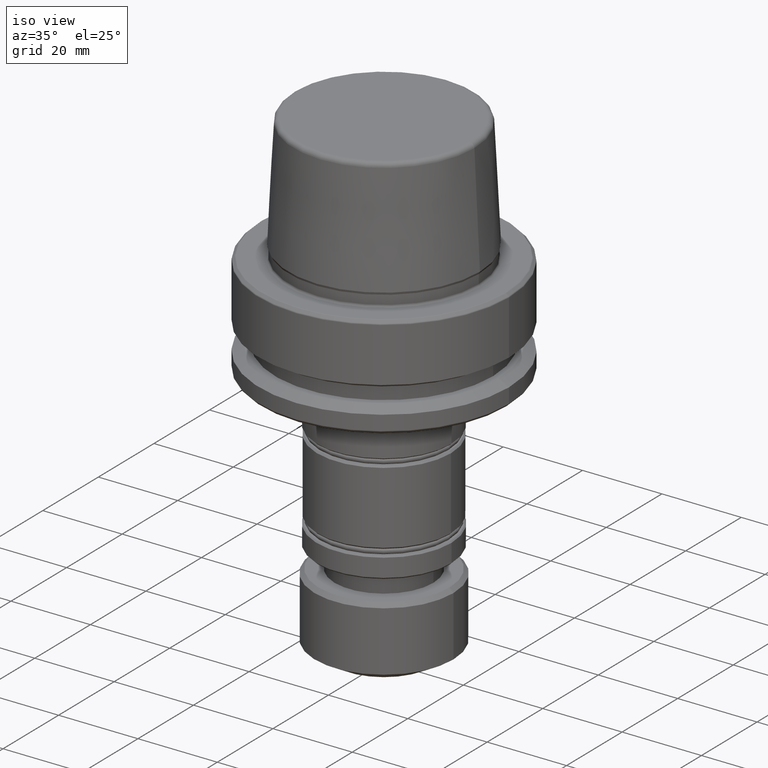
[diagram: clean part render]
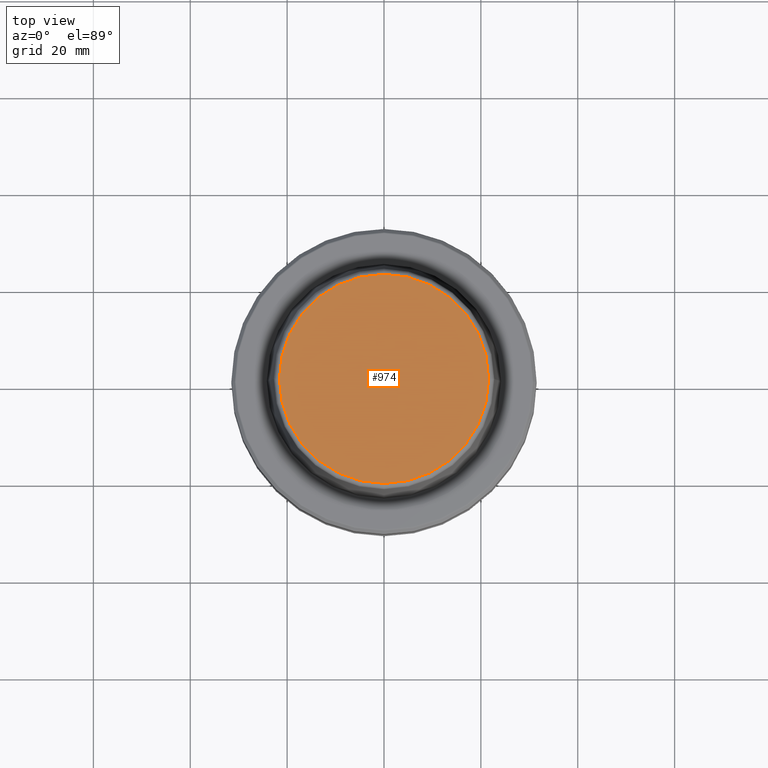
[diagram: tour spotlight — one face highlighted and labeled with its STEP entity id]
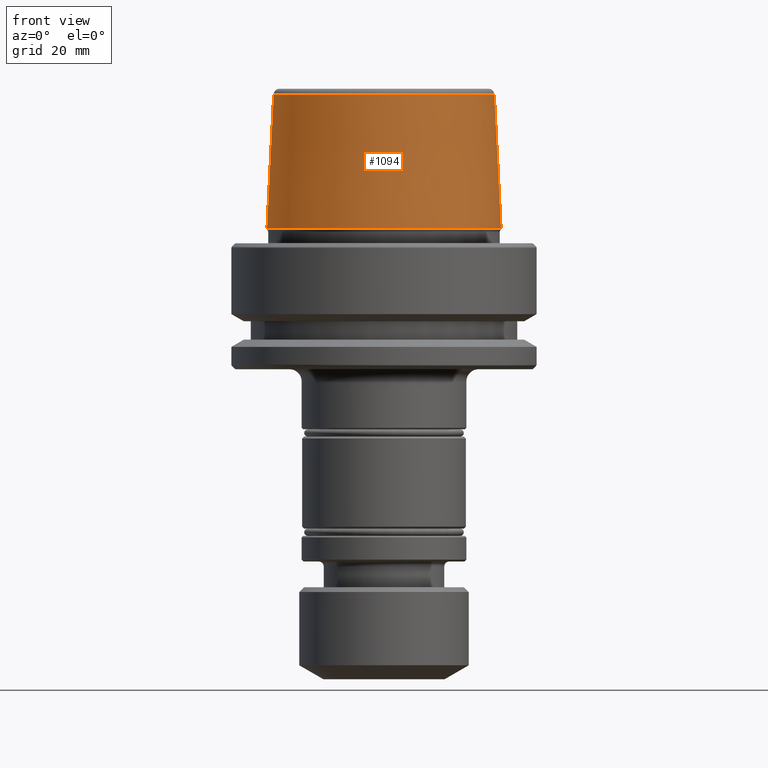
[diagram: tour spotlight — one face highlighted and labeled with its STEP entity id]
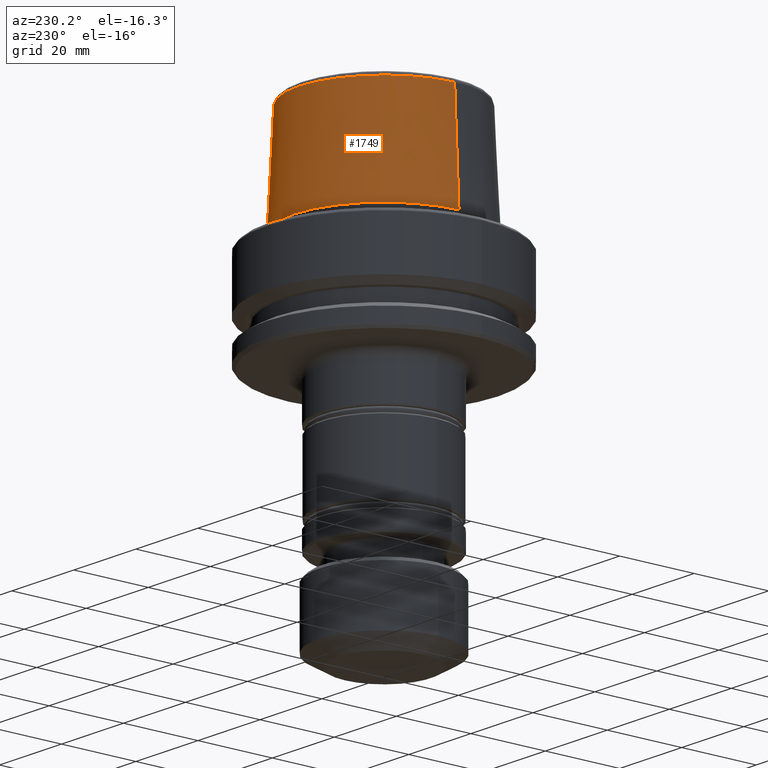
[diagram: tour spotlight — one face highlighted and labeled with its STEP entity id]
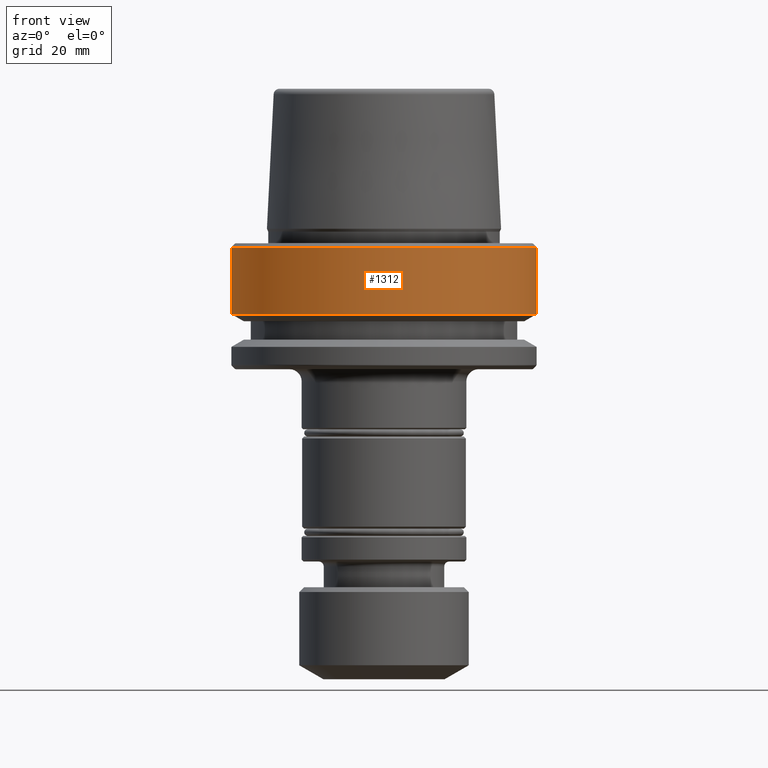
[diagram: tour spotlight — one face highlighted and labeled with its STEP entity id]
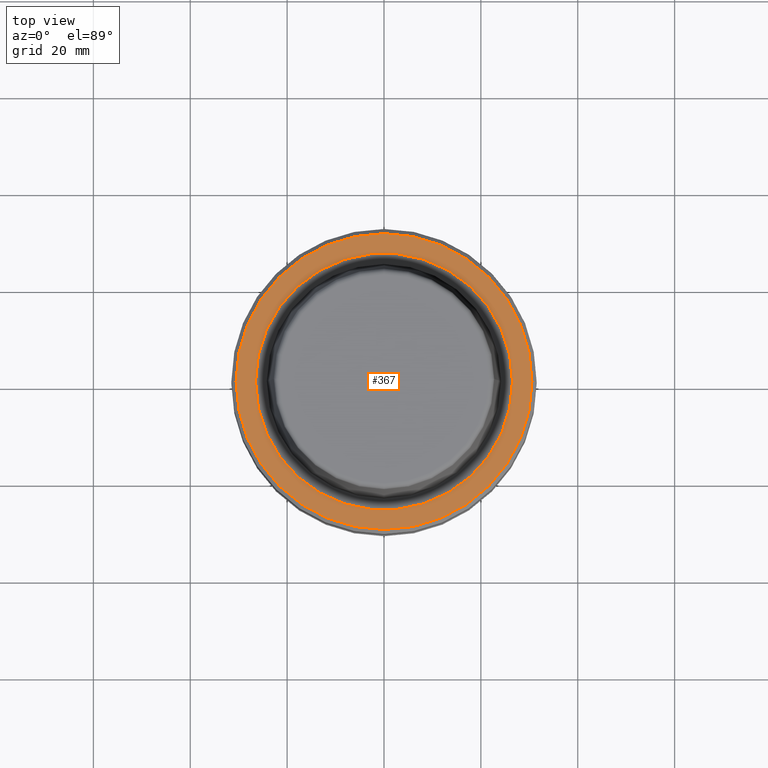
[diagram: tour spotlight — one face highlighted and labeled with its STEP entity id]
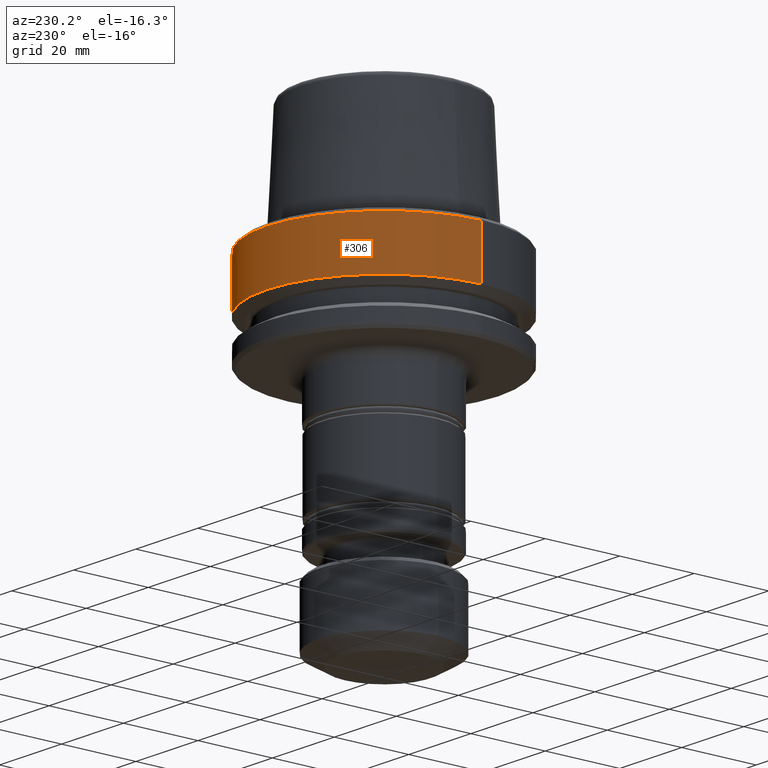
[diagram: tour spotlight — one face highlighted and labeled with its STEP entity id]
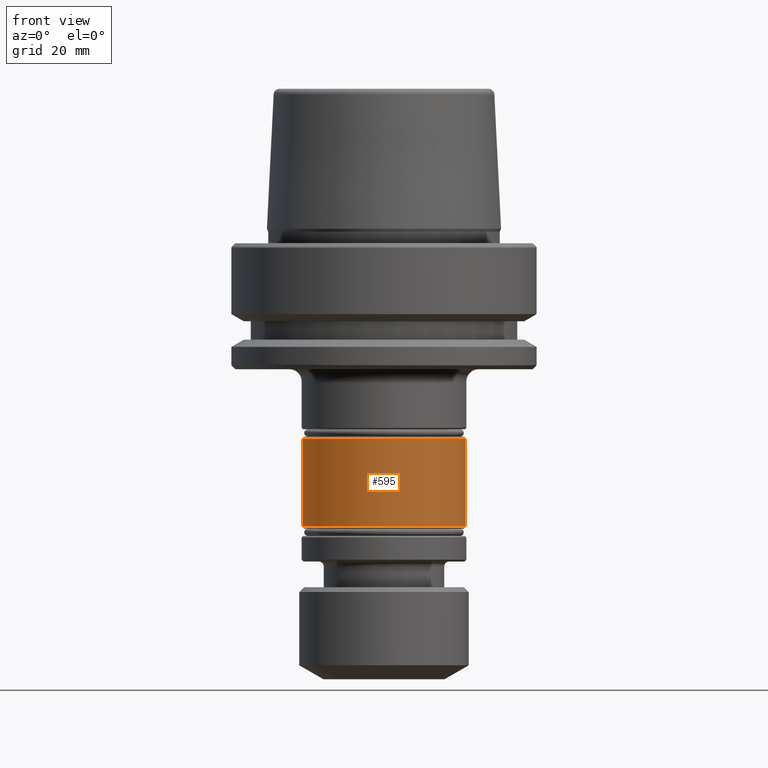
[diagram: tour spotlight — one face highlighted and labeled with its STEP entity id]
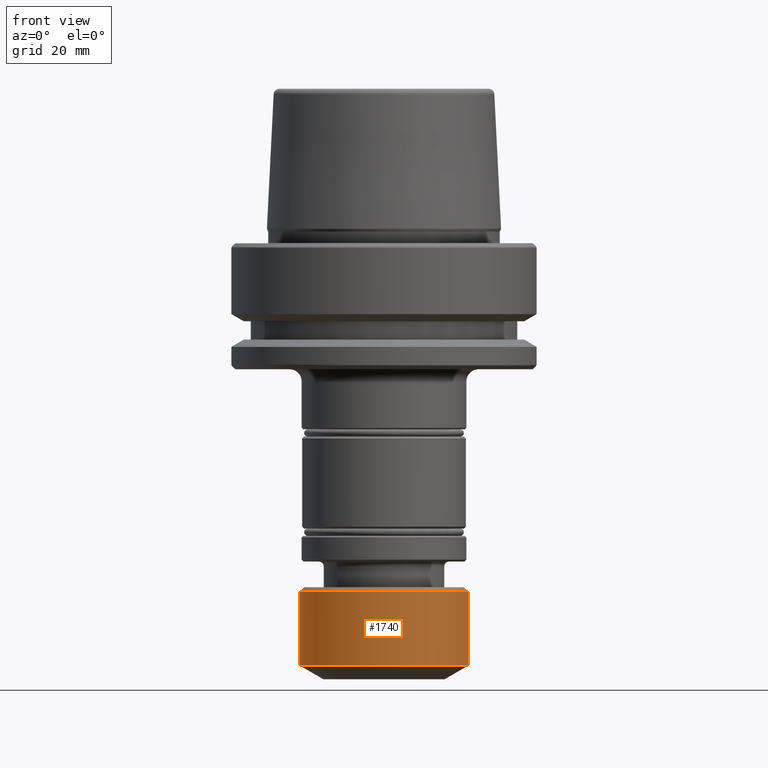
[diagram: tour spotlight — one face highlighted and labeled with its STEP entity id]
A machine part: a face-by-face anatomy tour. The part has 78 B-rep faces; the first image is the clean iso view, then the 8 largest visible faces are spotlighted one at a time (largest first), each with its STEP entity span.

Face 1 — top view, entity #974. In plain terms, the highlighted planar face has unit normal (0, 0, -1).
Definition (entity closure, byte-faithful):
#7 = CIRCLE ( 'NONE', #1008, 21.58108272732117100 ) ;
#30 = CIRCLE ( 'NONE', #1220, 21.58108272732117100 ) ;
#42 = EDGE_LOOP ( 'NONE', ( #1570, #1662 ) ) ;
#95 = EDGE_CURVE ( 'NONE', #1498, #1364, #7, .T. ) ;
#199 = CARTESIAN_POINT ( 'NONE',  ( 0.0000000000000000000, 0.0000000000000000000, 31.89999999999999900 ) ) ;
#364 = DIRECTION ( 'NONE',  ( -0.0000000000000000000, -0.0000000000000000000, 1.000000000000000000 ) ) ;
#430 = PLANE ( 'NONE',  #599 ) ;
#491 = DIRECTION ( 'NONE',  ( 0.0000000000000000000, 0.0000000000000000000, -1.000000000000000000 ) ) ;
#498 = CARTESIAN_POINT ( 'NONE',  ( -21.58108272732117100, 2.716307157494421400E-015, 31.89999999999999900 ) ) ;
#531 = DIRECTION ( 'NONE',  ( 1.000000000000000000, 0.0000000000000000000, 0.0000000000000000000 ) ) ;
#599 = AXIS2_PLACEMENT_3D ( 'NONE', #2032, #491, #1806 ) ;
#722 = EDGE_CURVE ( 'NONE', #1364, #1498, #30, .T. ) ;
#916 = DIRECTION ( 'NONE',  ( -0.0000000000000000000, -0.0000000000000000000, 1.000000000000000000 ) ) ;
#974 = ADVANCED_FACE ( 'NONE', ( #1673 ), #430, .F. ) ;
#1008 = AXIS2_PLACEMENT_3D ( 'NONE', #199, #916, #1482 ) ;
#1220 = AXIS2_PLACEMENT_3D ( 'NONE', #2004, #364, #531 ) ;
#1250 = CARTESIAN_POINT ( 'NONE',  ( 21.58108272732117100, 0.0000000000000000000, 31.89999999999999900 ) ) ;
#1364 = VERTEX_POINT ( 'NONE', #498 ) ;
#1482 = DIRECTION ( 'NONE',  ( 1.000000000000000000, 0.0000000000000000000, 0.0000000000000000000 ) ) ;
#1498 = VERTEX_POINT ( 'NONE', #1250 ) ;
#1570 = ORIENTED_EDGE ( 'NONE', *, *, #95, .T. ) ;
#1662 = ORIENTED_EDGE ( 'NONE', *, *, #722, .T. ) ;
#1673 = FACE_OUTER_BOUND ( 'NONE', #42, .T. ) ;
#1806 = DIRECTION ( 'NONE',  ( -1.000000000000000000, 0.0000000000000000000, -0.0000000000000000000 ) ) ;
#2004 = CARTESIAN_POINT ( 'NONE',  ( 0.0000000000000000000, 0.0000000000000000000, 31.89999999999999900 ) ) ;
#2032 = CARTESIAN_POINT ( 'NONE',  ( 0.0000000000000000000, 0.0000000000000000000, 31.89999999999999900 ) ) ;

Face 2 — front view, entity #1094. In plain terms, the highlighted conical surface has half-angle 2.868 deg.
Definition (entity closure, byte-faithful):
#6 = AXIS2_PLACEMENT_3D ( 'NONE', #1765, #400, #1548 ) ;
#56 = CARTESIAN_POINT ( 'NONE',  ( -22.77957961851797100, 0.0000000000000000000, 30.76004333261571900 ) ) ;
#93 = VECTOR ( 'NONE', #1204, 1000.000000000000200 ) ;
#118 = LINE ( 'NONE', #1363, #93 ) ;
#177 = EDGE_CURVE ( 'NONE', #576, #1287, #118, .T. ) ;
#208 = CIRCLE ( 'NONE', #1001, 22.77957961851797100 ) ;
#276 = VERTEX_POINT ( 'NONE', #1198 ) ;
#338 = LINE ( 'NONE', #1951, #1532 ) ;
#380 = DIRECTION ( 'NONE',  ( -0.0000000000000000000, -0.0000000000000000000, 1.000000000000000000 ) ) ;
#388 = FACE_OUTER_BOUND ( 'NONE', #1419, .T. ) ;
#400 = DIRECTION ( 'NONE',  ( -0.0000000000000000000, -0.0000000000000000000, 1.000000000000000000 ) ) ;
#576 = VERTEX_POINT ( 'NONE', #56 ) ;
#697 = EDGE_CURVE ( 'NONE', #576, #1804, #208, .T. ) ;
#783 = EDGE_CURVE ( 'NONE', #1287, #276, #973, .T. ) ;
#795 = DIRECTION ( 'NONE',  ( 0.05003611051310812000, 6.127656258166108900E-018, -0.9987474093306675200 ) ) ;
#872 = CONICAL_SURFACE ( 'NONE', #2013, 24.17032625081241900, 0.05005701257456005000 ) ;
#931 = CARTESIAN_POINT ( 'NONE',  ( 0.0000000000000000000, 0.0000000000000000000, 3.000000000000002700 ) ) ;
#971 = DIRECTION ( 'NONE',  ( -1.000000000000000000, 0.0000000000000000000, 0.0000000000000000000 ) ) ;
#973 = CIRCLE ( 'NONE', #6, 24.17032625081241900 ) ;
#983 = ORIENTED_EDGE ( 'NONE', *, *, #1066, .F. ) ;
#1001 = AXIS2_PLACEMENT_3D ( 'NONE', #1242, #380, #1435 ) ;
#1035 = CARTESIAN_POINT ( 'NONE',  ( -24.17032625081241900, 2.960011267740467600E-015, 3.000000000000002700 ) ) ;
#1062 = ORIENTED_EDGE ( 'NONE', *, *, #783, .T. ) ;
#1066 = EDGE_CURVE ( 'NONE', #1804, #276, #338, .T. ) ;
#1094 = ADVANCED_FACE ( 'NONE', ( #388 ), #872, .T. ) ;
#1198 = CARTESIAN_POINT ( 'NONE',  ( 24.17032625081241900, 0.0000000000000000000, 3.000000000000002700 ) ) ;
#1204 = DIRECTION ( 'NONE',  ( -0.05003611051310812000, 0.0000000000000000000, -0.9987474093306675200 ) ) ;
#1213 = ORIENTED_EDGE ( 'NONE', *, *, #177, .T. ) ;
#1242 = CARTESIAN_POINT ( 'NONE',  ( 0.0000000000000000000, 0.0000000000000000000, 30.76004333261571900 ) ) ;
#1287 = VERTEX_POINT ( 'NONE', #1035 ) ;
#1363 = CARTESIAN_POINT ( 'NONE',  ( -24.17032625081241900, 0.0000000000000000000, 3.000000000000002700 ) ) ;
#1388 = DIRECTION ( 'NONE',  ( 0.0000000000000000000, 0.0000000000000000000, -1.000000000000000000 ) ) ;
#1419 = EDGE_LOOP ( 'NONE', ( #983, #1877, #1213, #1062 ) ) ;
#1435 = DIRECTION ( 'NONE',  ( 1.000000000000000000, 0.0000000000000000000, 0.0000000000000000000 ) ) ;
#1532 = VECTOR ( 'NONE', #795, 1000.000000000000200 ) ;
#1548 = DIRECTION ( 'NONE',  ( 1.000000000000000000, 0.0000000000000000000, 0.0000000000000000000 ) ) ;
#1765 = CARTESIAN_POINT ( 'NONE',  ( 0.0000000000000000000, 0.0000000000000000000, 3.000000000000002700 ) ) ;
#1804 = VERTEX_POINT ( 'NONE', #1919 ) ;
#1877 = ORIENTED_EDGE ( 'NONE', *, *, #697, .F. ) ;
#1919 = CARTESIAN_POINT ( 'NONE',  ( 22.77957961851797100, 2.874852597157249900E-015, 30.76004333261571900 ) ) ;
#1951 = CARTESIAN_POINT ( 'NONE',  ( 24.17032625081241900, 2.960011267740467600E-015, 3.000000000000002700 ) ) ;
#2013 = AXIS2_PLACEMENT_3D ( 'NONE', #931, #1388, #971 ) ;

Face 3 — auxiliary view, entity #1749. In plain terms, the highlighted conical surface has half-angle 2.868 deg.
Definition (entity closure, byte-faithful):
#23 = AXIS2_PLACEMENT_3D ( 'NONE', #928, #1245, #457 ) ;
#56 = CARTESIAN_POINT ( 'NONE',  ( -22.77957961851797100, 0.0000000000000000000, 30.76004333261571900 ) ) ;
#58 = EDGE_CURVE ( 'NONE', #276, #1287, #1700, .T. ) ;
#93 = VECTOR ( 'NONE', #1204, 1000.000000000000200 ) ;
#118 = LINE ( 'NONE', #1363, #93 ) ;
#177 = EDGE_CURVE ( 'NONE', #576, #1287, #118, .T. ) ;
#276 = VERTEX_POINT ( 'NONE', #1198 ) ;
#289 = ORIENTED_EDGE ( 'NONE', *, *, #1066, .T. ) ;
#338 = LINE ( 'NONE', #1951, #1532 ) ;
#457 = DIRECTION ( 'NONE',  ( -1.000000000000000000, 0.0000000000000000000, 0.0000000000000000000 ) ) ;
#576 = VERTEX_POINT ( 'NONE', #56 ) ;
#633 = DIRECTION ( 'NONE',  ( -0.0000000000000000000, -0.0000000000000000000, 1.000000000000000000 ) ) ;
#676 = CIRCLE ( 'NONE', #1203, 22.77957961851797100 ) ;
#771 = CONICAL_SURFACE ( 'NONE', #23, 24.17032625081241900, 0.05005701257456005000 ) ;
#795 = DIRECTION ( 'NONE',  ( 0.05003611051310812000, 6.127656258166108900E-018, -0.9987474093306675200 ) ) ;
#903 = CARTESIAN_POINT ( 'NONE',  ( 0.0000000000000000000, 0.0000000000000000000, 30.76004333261571900 ) ) ;
#928 = CARTESIAN_POINT ( 'NONE',  ( 0.0000000000000000000, 0.0000000000000000000, 3.000000000000002700 ) ) ;
#1035 = CARTESIAN_POINT ( 'NONE',  ( -24.17032625081241900, 2.960011267740467600E-015, 3.000000000000002700 ) ) ;
#1057 = ORIENTED_EDGE ( 'NONE', *, *, #177, .F. ) ;
#1066 = EDGE_CURVE ( 'NONE', #1804, #276, #338, .T. ) ;
#1122 = AXIS2_PLACEMENT_3D ( 'NONE', #1792, #633, #1636 ) ;
#1198 = CARTESIAN_POINT ( 'NONE',  ( 24.17032625081241900, 0.0000000000000000000, 3.000000000000002700 ) ) ;
#1203 = AXIS2_PLACEMENT_3D ( 'NONE', #903, #1998, #1275 ) ;
#1204 = DIRECTION ( 'NONE',  ( -0.05003611051310812000, 0.0000000000000000000, -0.9987474093306675200 ) ) ;
#1212 = EDGE_CURVE ( 'NONE', #1804, #576, #676, .T. ) ;
#1245 = DIRECTION ( 'NONE',  ( 0.0000000000000000000, 0.0000000000000000000, -1.000000000000000000 ) ) ;
#1275 = DIRECTION ( 'NONE',  ( 1.000000000000000000, 0.0000000000000000000, 0.0000000000000000000 ) ) ;
#1287 = VERTEX_POINT ( 'NONE', #1035 ) ;
#1341 = ORIENTED_EDGE ( 'NONE', *, *, #58, .T. ) ;
#1363 = CARTESIAN_POINT ( 'NONE',  ( -24.17032625081241900, 0.0000000000000000000, 3.000000000000002700 ) ) ;
#1444 = EDGE_LOOP ( 'NONE', ( #1447, #289, #1341, #1057 ) ) ;
#1447 = ORIENTED_EDGE ( 'NONE', *, *, #1212, .F. ) ;
#1532 = VECTOR ( 'NONE', #795, 1000.000000000000200 ) ;
#1636 = DIRECTION ( 'NONE',  ( 1.000000000000000000, 0.0000000000000000000, 0.0000000000000000000 ) ) ;
#1700 = CIRCLE ( 'NONE', #1122, 24.17032625081241900 ) ;
#1749 = ADVANCED_FACE ( 'NONE', ( #2010 ), #771, .T. ) ;
#1792 = CARTESIAN_POINT ( 'NONE',  ( 0.0000000000000000000, 0.0000000000000000000, 3.000000000000002700 ) ) ;
#1804 = VERTEX_POINT ( 'NONE', #1919 ) ;
#1919 = CARTESIAN_POINT ( 'NONE',  ( 22.77957961851797100, 2.874852597157249900E-015, 30.76004333261571900 ) ) ;
#1951 = CARTESIAN_POINT ( 'NONE',  ( 24.17032625081241900, 2.960011267740467600E-015, 3.000000000000002700 ) ) ;
#1998 = DIRECTION ( 'NONE',  ( -0.0000000000000000000, -0.0000000000000000000, 1.000000000000000000 ) ) ;
#2010 = FACE_OUTER_BOUND ( 'NONE', #1444, .T. ) ;

Face 4 — front view, entity #1312. In plain terms, the highlighted cylindrical surface (partial cylindrical patch) has radius 31.5 mm, axis along (-0, -0, 1).
Definition (entity closure, byte-faithful):
#123 = CARTESIAN_POINT ( 'NONE',  ( 31.50000000000000700, 0.0000000000000000000, -0.9656854249492363700 ) ) ;
#128 = DIRECTION ( 'NONE',  ( 1.000000000000000000, 0.0000000000000000000, 0.0000000000000000000 ) ) ;
#134 = CIRCLE ( 'NONE', #1171, 31.50000000000000700 ) ;
#219 = ORIENTED_EDGE ( 'NONE', *, *, #853, .F. ) ;
#372 = DIRECTION ( 'NONE',  ( 1.000000000000000000, 0.0000000000000000000, 0.0000000000000000000 ) ) ;
#432 = AXIS2_PLACEMENT_3D ( 'NONE', #1931, #792, #128 ) ;
#545 = DIRECTION ( 'NONE',  ( -0.0000000000000000000, -0.0000000000000000000, 1.000000000000000000 ) ) ;
#608 = EDGE_CURVE ( 'NONE', #2058, #1676, #1197, .T. ) ;
#622 = EDGE_CURVE ( 'NONE', #2058, #1734, #1533, .T. ) ;
#638 = ORIENTED_EDGE ( 'NONE', *, *, #1922, .T. ) ;
#792 = DIRECTION ( 'NONE',  ( -0.0000000000000000000, -0.0000000000000000000, 1.000000000000000000 ) ) ;
#853 = EDGE_CURVE ( 'NONE', #1734, #1031, #134, .T. ) ;
#1020 = CARTESIAN_POINT ( 'NONE',  ( -31.50000000000000000, 3.857637417314162700E-015, -14.62250092524070100 ) ) ;
#1031 = VERTEX_POINT ( 'NONE', #123 ) ;
#1043 = CARTESIAN_POINT ( 'NONE',  ( 0.0000000000000000000, 0.0000000000000000000, -14.62250092524070100 ) ) ;
#1071 = CARTESIAN_POINT ( 'NONE',  ( 31.50000000000000000, 0.0000000000000000000, -14.62250092524070100 ) ) ;
#1072 = VECTOR ( 'NONE', #545, 1000.000000000000000 ) ;
#1142 = CARTESIAN_POINT ( 'NONE',  ( 31.50000000000000000, 0.0000000000000000000, 78.96908074195309300 ) ) ;
#1164 = FACE_OUTER_BOUND ( 'NONE', #1817, .T. ) ;
#1171 = AXIS2_PLACEMENT_3D ( 'NONE', #1317, #1932, #1478 ) ;
#1197 = CIRCLE ( 'NONE', #1709, 31.50000000000000000 ) ;
#1274 = VECTOR ( 'NONE', #1310, 1000.000000000000000 ) ;
#1310 = DIRECTION ( 'NONE',  ( -0.0000000000000000000, -0.0000000000000000000, 1.000000000000000000 ) ) ;
#1312 = ADVANCED_FACE ( 'NONE', ( #1164 ), #1967, .T. ) ;
#1317 = CARTESIAN_POINT ( 'NONE',  ( 0.0000000000000000000, 0.0000000000000000000, -0.9656854249492363700 ) ) ;
#1405 = CARTESIAN_POINT ( 'NONE',  ( -31.50000000000000700, 3.857637417314163500E-015, -0.9656854249492363700 ) ) ;
#1478 = DIRECTION ( 'NONE',  ( 1.000000000000000000, 0.0000000000000000000, 0.0000000000000000000 ) ) ;
#1533 = LINE ( 'NONE', #1730, #1072 ) ;
#1676 = VERTEX_POINT ( 'NONE', #1071 ) ;
#1686 = ORIENTED_EDGE ( 'NONE', *, *, #608, .T. ) ;
#1709 = AXIS2_PLACEMENT_3D ( 'NONE', #1043, #1810, #372 ) ;
#1730 = CARTESIAN_POINT ( 'NONE',  ( -31.50000000000000000, 3.857637417314162700E-015, 78.96908074195309300 ) ) ;
#1734 = VERTEX_POINT ( 'NONE', #1405 ) ;
#1745 = ORIENTED_EDGE ( 'NONE', *, *, #622, .F. ) ;
#1810 = DIRECTION ( 'NONE',  ( -0.0000000000000000000, -0.0000000000000000000, 1.000000000000000000 ) ) ;
#1817 = EDGE_LOOP ( 'NONE', ( #1745, #1686, #638, #219 ) ) ;
#1915 = LINE ( 'NONE', #1142, #1274 ) ;
#1922 = EDGE_CURVE ( 'NONE', #1676, #1031, #1915, .T. ) ;
#1931 = CARTESIAN_POINT ( 'NONE',  ( 0.0000000000000000000, 0.0000000000000000000, 78.96908074195309300 ) ) ;
#1932 = DIRECTION ( 'NONE',  ( -0.0000000000000000000, -0.0000000000000000000, 1.000000000000000000 ) ) ;
#1967 = CYLINDRICAL_SURFACE ( 'NONE', #432, 31.50000000000000000 ) ;
#2058 = VERTEX_POINT ( 'NONE', #1020 ) ;

Face 5 — top view, entity #367. In plain terms, the highlighted planar face has unit normal (0, 0, -1).
Definition (entity closure, byte-faithful):
#51 = CIRCLE ( 'NONE', #148, 26.52499999999999900 ) ;
#77 = AXIS2_PLACEMENT_3D ( 'NONE', #1824, #607, #1617 ) ;
#101 = CIRCLE ( 'NONE', #908, 26.52499999999999900 ) ;
#111 = DIRECTION ( 'NONE',  ( -0.0000000000000000000, -0.0000000000000000000, 1.000000000000000000 ) ) ;
#142 = EDGE_LOOP ( 'NONE', ( #762, #1884 ) ) ;
#146 = CARTESIAN_POINT ( 'NONE',  ( -30.53431457505076100, 3.756694181974138600E-015, 0.0000000000000000000 ) ) ;
#148 = AXIS2_PLACEMENT_3D ( 'NONE', #172, #1403, #1794 ) ;
#172 = CARTESIAN_POINT ( 'NONE',  ( 0.0000000000000000000, 0.0000000000000000000, 0.0000000000000000000 ) ) ;
#223 = ORIENTED_EDGE ( 'NONE', *, *, #946, .T. ) ;
#231 = DIRECTION ( 'NONE',  ( -0.0000000000000000000, -0.0000000000000000000, 1.000000000000000000 ) ) ;
#258 = VERTEX_POINT ( 'NONE', #146 ) ;
#278 = CARTESIAN_POINT ( 'NONE',  ( 30.53431457505076100, 0.0000000000000000000, 0.0000000000000000000 ) ) ;
#367 = ADVANCED_FACE ( 'NONE', ( #1798, #1019 ), #960, .F. ) ;
#559 = VERTEX_POINT ( 'NONE', #2089 ) ;
#607 = DIRECTION ( 'NONE',  ( -0.0000000000000000000, -0.0000000000000000000, 1.000000000000000000 ) ) ;
#762 = ORIENTED_EDGE ( 'NONE', *, *, #1105, .F. ) ;
#770 = EDGE_CURVE ( 'NONE', #258, #1081, #804, .T. ) ;
#804 = CIRCLE ( 'NONE', #1880, 30.53431457505076100 ) ;
#908 = AXIS2_PLACEMENT_3D ( 'NONE', #1054, #111, #1219 ) ;
#946 = EDGE_CURVE ( 'NONE', #1081, #258, #1850, .T. ) ;
#960 = PLANE ( 'NONE',  #1642 ) ;
#1019 = FACE_OUTER_BOUND ( 'NONE', #1321, .T. ) ;
#1024 = CARTESIAN_POINT ( 'NONE',  ( 0.0000000000000000000, 26.52499999999999900, -1.111307226797642000E-015 ) ) ;
#1054 = CARTESIAN_POINT ( 'NONE',  ( 0.0000000000000000000, 0.0000000000000000000, 0.0000000000000000000 ) ) ;
#1081 = VERTEX_POINT ( 'NONE', #278 ) ;
#1105 = EDGE_CURVE ( 'NONE', #559, #1742, #51, .T. ) ;
#1219 = DIRECTION ( 'NONE',  ( 1.000000000000000000, 0.0000000000000000000, 0.0000000000000000000 ) ) ;
#1321 = EDGE_LOOP ( 'NONE', ( #223, #1717 ) ) ;
#1403 = DIRECTION ( 'NONE',  ( -0.0000000000000000000, -0.0000000000000000000, 1.000000000000000000 ) ) ;
#1448 = DIRECTION ( 'NONE',  ( -1.000000000000000000, 0.0000000000000000000, -0.0000000000000000000 ) ) ;
#1617 = DIRECTION ( 'NONE',  ( 1.000000000000000000, 0.0000000000000000000, 0.0000000000000000000 ) ) ;
#1625 = EDGE_CURVE ( 'NONE', #1742, #559, #101, .T. ) ;
#1642 = AXIS2_PLACEMENT_3D ( 'NONE', #1024, #1939, #1448 ) ;
#1717 = ORIENTED_EDGE ( 'NONE', *, *, #770, .T. ) ;
#1742 = VERTEX_POINT ( 'NONE', #2064 ) ;
#1794 = DIRECTION ( 'NONE',  ( 1.000000000000000000, 0.0000000000000000000, 0.0000000000000000000 ) ) ;
#1798 = FACE_BOUND ( 'NONE', #142, .T. ) ;
#1824 = CARTESIAN_POINT ( 'NONE',  ( 0.0000000000000000000, 0.0000000000000000000, 0.0000000000000000000 ) ) ;
#1850 = CIRCLE ( 'NONE', #77, 30.53431457505076100 ) ;
#1880 = AXIS2_PLACEMENT_3D ( 'NONE', #2044, #231, #1994 ) ;
#1884 = ORIENTED_EDGE ( 'NONE', *, *, #1625, .F. ) ;
#1939 = DIRECTION ( 'NONE',  ( 0.0000000000000000000, 0.0000000000000000000, -1.000000000000000000 ) ) ;
#1994 = DIRECTION ( 'NONE',  ( 1.000000000000000000, 0.0000000000000000000, 0.0000000000000000000 ) ) ;
#2044 = CARTESIAN_POINT ( 'NONE',  ( 0.0000000000000000000, 0.0000000000000000000, 0.0000000000000000000 ) ) ;
#2064 = CARTESIAN_POINT ( 'NONE',  ( -26.52499999999999900, 3.248375634738354300E-015, 0.0000000000000000000 ) ) ;
#2089 = CARTESIAN_POINT ( 'NONE',  ( 26.52499999999999900, 0.0000000000000000000, 0.0000000000000000000 ) ) ;

Face 6 — auxiliary view, entity #306. In plain terms, the highlighted cylindrical surface (partial cylindrical patch) has radius 31.5 mm, axis along (-0, -0, 1).
Definition (entity closure, byte-faithful):
#18 = ORIENTED_EDGE ( 'NONE', *, *, #2016, .F. ) ;
#52 = FACE_OUTER_BOUND ( 'NONE', #1404, .T. ) ;
#123 = CARTESIAN_POINT ( 'NONE',  ( 31.50000000000000700, 0.0000000000000000000, -0.9656854249492363700 ) ) ;
#203 = AXIS2_PLACEMENT_3D ( 'NONE', #544, #1677, #700 ) ;
#306 = ADVANCED_FACE ( 'NONE', ( #52 ), #1228, .T. ) ;
#349 = ORIENTED_EDGE ( 'NONE', *, *, #1922, .F. ) ;
#471 = ORIENTED_EDGE ( 'NONE', *, *, #1398, .T. ) ;
#544 = CARTESIAN_POINT ( 'NONE',  ( 0.0000000000000000000, 0.0000000000000000000, -0.9656854249492363700 ) ) ;
#545 = DIRECTION ( 'NONE',  ( -0.0000000000000000000, -0.0000000000000000000, 1.000000000000000000 ) ) ;
#622 = EDGE_CURVE ( 'NONE', #2058, #1734, #1533, .T. ) ;
#700 = DIRECTION ( 'NONE',  ( 1.000000000000000000, 0.0000000000000000000, 0.0000000000000000000 ) ) ;
#887 = DIRECTION ( 'NONE',  ( -0.0000000000000000000, -0.0000000000000000000, 1.000000000000000000 ) ) ;
#904 = ORIENTED_EDGE ( 'NONE', *, *, #622, .T. ) ;
#1013 = CIRCLE ( 'NONE', #203, 31.50000000000000700 ) ;
#1020 = CARTESIAN_POINT ( 'NONE',  ( -31.50000000000000000, 3.857637417314162700E-015, -14.62250092524070100 ) ) ;
#1031 = VERTEX_POINT ( 'NONE', #123 ) ;
#1056 = AXIS2_PLACEMENT_3D ( 'NONE', #2020, #887, #1865 ) ;
#1071 = CARTESIAN_POINT ( 'NONE',  ( 31.50000000000000000, 0.0000000000000000000, -14.62250092524070100 ) ) ;
#1072 = VECTOR ( 'NONE', #545, 1000.000000000000000 ) ;
#1142 = CARTESIAN_POINT ( 'NONE',  ( 31.50000000000000000, 0.0000000000000000000, 78.96908074195309300 ) ) ;
#1184 = AXIS2_PLACEMENT_3D ( 'NONE', #1594, #1688, #1618 ) ;
#1228 = CYLINDRICAL_SURFACE ( 'NONE', #1184, 31.50000000000000000 ) ;
#1274 = VECTOR ( 'NONE', #1310, 1000.000000000000000 ) ;
#1310 = DIRECTION ( 'NONE',  ( -0.0000000000000000000, -0.0000000000000000000, 1.000000000000000000 ) ) ;
#1398 = EDGE_CURVE ( 'NONE', #1676, #2058, #1687, .T. ) ;
#1404 = EDGE_LOOP ( 'NONE', ( #471, #904, #18, #349 ) ) ;
#1405 = CARTESIAN_POINT ( 'NONE',  ( -31.50000000000000700, 3.857637417314163500E-015, -0.9656854249492363700 ) ) ;
#1533 = LINE ( 'NONE', #1730, #1072 ) ;
#1594 = CARTESIAN_POINT ( 'NONE',  ( 0.0000000000000000000, 0.0000000000000000000, 78.96908074195309300 ) ) ;
#1618 = DIRECTION ( 'NONE',  ( 1.000000000000000000, 0.0000000000000000000, 0.0000000000000000000 ) ) ;
#1676 = VERTEX_POINT ( 'NONE', #1071 ) ;
#1677 = DIRECTION ( 'NONE',  ( -0.0000000000000000000, -0.0000000000000000000, 1.000000000000000000 ) ) ;
#1687 = CIRCLE ( 'NONE', #1056, 31.50000000000000000 ) ;
#1688 = DIRECTION ( 'NONE',  ( -0.0000000000000000000, -0.0000000000000000000, 1.000000000000000000 ) ) ;
#1730 = CARTESIAN_POINT ( 'NONE',  ( -31.50000000000000000, 3.857637417314162700E-015, 78.96908074195309300 ) ) ;
#1734 = VERTEX_POINT ( 'NONE', #1405 ) ;
#1865 = DIRECTION ( 'NONE',  ( 1.000000000000000000, 0.0000000000000000000, 0.0000000000000000000 ) ) ;
#1915 = LINE ( 'NONE', #1142, #1274 ) ;
#1922 = EDGE_CURVE ( 'NONE', #1676, #1031, #1915, .T. ) ;
#2016 = EDGE_CURVE ( 'NONE', #1031, #1734, #1013, .T. ) ;
#2020 = CARTESIAN_POINT ( 'NONE',  ( 0.0000000000000000000, 0.0000000000000000000, -14.62250092524070100 ) ) ;
#2058 = VERTEX_POINT ( 'NONE', #1020 ) ;

Face 7 — front view, entity #595. In plain terms, the highlighted cylindrical surface (partial cylindrical patch) has radius 16.9 mm, axis along (-0, -0, 1).
Definition (entity closure, byte-faithful):
#31 = EDGE_CURVE ( 'NONE', #1910, #962, #399, .T. ) ;
#35 = CARTESIAN_POINT ( 'NONE',  ( -16.90000000000012300, 2.069653090559042300E-015, -58.50000000000086000 ) ) ;
#57 = DIRECTION ( 'NONE',  ( 1.000000000000000000, 0.0000000000000000000, 0.0000000000000000000 ) ) ;
#75 = VERTEX_POINT ( 'NONE', #1092 ) ;
#224 = ORIENTED_EDGE ( 'NONE', *, *, #1841, .F. ) ;
#277 = DIRECTION ( 'NONE',  ( 1.000000000000000000, 0.0000000000000000000, 0.0000000000000000000 ) ) ;
#281 = DIRECTION ( 'NONE',  ( -0.0000000000000000000, -0.0000000000000000000, 1.000000000000000000 ) ) ;
#399 = CIRCLE ( 'NONE', #805, 16.90000000000012300 ) ;
#461 = CIRCLE ( 'NONE', #656, 16.90000000000013700 ) ;
#484 = CARTESIAN_POINT ( 'NONE',  ( 0.0000000000000000000, 0.0000000000000000000, -40.30000000000130500 ) ) ;
#488 = VECTOR ( 'NONE', #1697, 1000.000000000000000 ) ;
#595 = ADVANCED_FACE ( 'NONE', ( #1327 ), #1047, .T. ) ;
#614 = CARTESIAN_POINT ( 'NONE',  ( -16.90000000000013000, 2.069653090559043100E-015, 47.57060037968214100 ) ) ;
#617 = ORIENTED_EDGE ( 'NONE', *, *, #1465, .F. ) ;
#656 = AXIS2_PLACEMENT_3D ( 'NONE', #484, #1612, #658 ) ;
#658 = DIRECTION ( 'NONE',  ( 1.000000000000000000, 0.0000000000000000000, 0.0000000000000000000 ) ) ;
#706 = DIRECTION ( 'NONE',  ( -0.0000000000000000000, -0.0000000000000000000, 1.000000000000000000 ) ) ;
#805 = AXIS2_PLACEMENT_3D ( 'NONE', #1918, #1767, #57 ) ;
#962 = VERTEX_POINT ( 'NONE', #1727 ) ;
#969 = VECTOR ( 'NONE', #706, 1000.000000000000000 ) ;
#994 = LINE ( 'NONE', #614, #969 ) ;
#1004 = ORIENTED_EDGE ( 'NONE', *, *, #1350, .T. ) ;
#1022 = CARTESIAN_POINT ( 'NONE',  ( 16.90000000000013700, 0.0000000000000000000, -40.30000000000130500 ) ) ;
#1047 = CYLINDRICAL_SURFACE ( 'NONE', #1926, 16.90000000000013000 ) ;
#1092 = CARTESIAN_POINT ( 'NONE',  ( -16.90000000000013700, 2.069653090559043900E-015, -40.30000000000130500 ) ) ;
#1096 = EDGE_LOOP ( 'NONE', ( #617, #1393, #1004, #224 ) ) ;
#1327 = FACE_OUTER_BOUND ( 'NONE', #1096, .T. ) ;
#1350 = EDGE_CURVE ( 'NONE', #962, #1567, #1870, .T. ) ;
#1353 = CARTESIAN_POINT ( 'NONE',  ( 0.0000000000000000000, 0.0000000000000000000, 47.57060037968214100 ) ) ;
#1393 = ORIENTED_EDGE ( 'NONE', *, *, #31, .T. ) ;
#1465 = EDGE_CURVE ( 'NONE', #1910, #75, #994, .T. ) ;
#1537 = CARTESIAN_POINT ( 'NONE',  ( 16.90000000000013000, 0.0000000000000000000, 47.57060037968214100 ) ) ;
#1567 = VERTEX_POINT ( 'NONE', #1022 ) ;
#1612 = DIRECTION ( 'NONE',  ( -0.0000000000000000000, -0.0000000000000000000, 1.000000000000000000 ) ) ;
#1697 = DIRECTION ( 'NONE',  ( -0.0000000000000000000, -0.0000000000000000000, 1.000000000000000000 ) ) ;
#1727 = CARTESIAN_POINT ( 'NONE',  ( 16.90000000000012300, 0.0000000000000000000, -58.50000000000086000 ) ) ;
#1767 = DIRECTION ( 'NONE',  ( -0.0000000000000000000, -0.0000000000000000000, 1.000000000000000000 ) ) ;
#1841 = EDGE_CURVE ( 'NONE', #75, #1567, #461, .T. ) ;
#1870 = LINE ( 'NONE', #1537, #488 ) ;
#1910 = VERTEX_POINT ( 'NONE', #35 ) ;
#1918 = CARTESIAN_POINT ( 'NONE',  ( 0.0000000000000000000, 0.0000000000000000000, -58.50000000000086000 ) ) ;
#1926 = AXIS2_PLACEMENT_3D ( 'NONE', #1353, #281, #277 ) ;

Face 8 — front view, entity #1740. In plain terms, the highlighted cylindrical surface (partial cylindrical patch) has radius 17.5 mm, axis along (-0, -0, 1).
Definition (entity closure, byte-faithful):
#76 = DIRECTION ( 'NONE',  ( 1.000000000000000000, 0.0000000000000000000, 0.0000000000000000000 ) ) ;
#107 = DIRECTION ( 'NONE',  ( -0.0000000000000000000, -0.0000000000000000000, 1.000000000000000000 ) ) ;
#135 = AXIS2_PLACEMENT_3D ( 'NONE', #760, #1078, #598 ) ;
#319 = VECTOR ( 'NONE', #876, 1000.000000000000000 ) ;
#353 = ORIENTED_EDGE ( 'NONE', *, *, #1308, .F. ) ;
#365 = CARTESIAN_POINT ( 'NONE',  ( 17.50000000000229200, 0.0000000000000000000, -71.99999999999998600 ) ) ;
#395 = EDGE_LOOP ( 'NONE', ( #1652, #1038, #1552, #353 ) ) ;
#439 = CIRCLE ( 'NONE', #2087, 17.50000000000229200 ) ;
#495 = VERTEX_POINT ( 'NONE', #1672 ) ;
#598 = DIRECTION ( 'NONE',  ( 1.000000000000000000, 0.0000000000000000000, 0.0000000000000000000 ) ) ;
#659 = EDGE_CURVE ( 'NONE', #1497, #2086, #1624, .T. ) ;
#681 = AXIS2_PLACEMENT_3D ( 'NONE', #1331, #1493, #76 ) ;
#694 = LINE ( 'NONE', #912, #319 ) ;
#711 = VERTEX_POINT ( 'NONE', #365 ) ;
#723 = CARTESIAN_POINT ( 'NONE',  ( 0.0000000000000000000, 0.0000000000000000000, -71.99999999999998600 ) ) ;
#730 = DIRECTION ( 'NONE',  ( 1.000000000000000000, 0.0000000000000000000, 0.0000000000000000000 ) ) ;
#760 = CARTESIAN_POINT ( 'NONE',  ( 0.0000000000000000000, 0.0000000000000000000, 47.57060037968214100 ) ) ;
#876 = DIRECTION ( 'NONE',  ( -0.0000000000000000000, -0.0000000000000000000, 1.000000000000000000 ) ) ;
#912 = CARTESIAN_POINT ( 'NONE',  ( -17.50000000000229200, 2.143131898508148700E-015, 47.57060037968214100 ) ) ;
#1015 = LINE ( 'NONE', #1191, #1097 ) ;
#1038 = ORIENTED_EDGE ( 'NONE', *, *, #659, .T. ) ;
#1078 = DIRECTION ( 'NONE',  ( -0.0000000000000000000, -0.0000000000000000000, 1.000000000000000000 ) ) ;
#1097 = VECTOR ( 'NONE', #1348, 1000.000000000000000 ) ;
#1191 = CARTESIAN_POINT ( 'NONE',  ( 17.50000000000229200, 0.0000000000000000000, 47.57060037968214100 ) ) ;
#1205 = EDGE_CURVE ( 'NONE', #1497, #495, #694, .T. ) ;
#1247 = EDGE_CURVE ( 'NONE', #2086, #711, #1015, .T. ) ;
#1308 = EDGE_CURVE ( 'NONE', #495, #711, #439, .T. ) ;
#1331 = CARTESIAN_POINT ( 'NONE',  ( 0.0000000000000000000, 0.0000000000000000000, -87.11324865405170200 ) ) ;
#1348 = DIRECTION ( 'NONE',  ( -0.0000000000000000000, -0.0000000000000000000, 1.000000000000000000 ) ) ;
#1372 = CYLINDRICAL_SURFACE ( 'NONE', #135, 17.50000000000229200 ) ;
#1408 = CARTESIAN_POINT ( 'NONE',  ( -17.50000000000229200, 2.143131898508148700E-015, -87.11324865405170200 ) ) ;
#1493 = DIRECTION ( 'NONE',  ( -0.0000000000000000000, -0.0000000000000000000, 1.000000000000000000 ) ) ;
#1497 = VERTEX_POINT ( 'NONE', #1408 ) ;
#1526 = CARTESIAN_POINT ( 'NONE',  ( 17.50000000000229200, 0.0000000000000000000, -87.11324865405170200 ) ) ;
#1552 = ORIENTED_EDGE ( 'NONE', *, *, #1247, .T. ) ;
#1624 = CIRCLE ( 'NONE', #681, 17.50000000000229200 ) ;
#1652 = ORIENTED_EDGE ( 'NONE', *, *, #1205, .F. ) ;
#1672 = CARTESIAN_POINT ( 'NONE',  ( -17.50000000000229200, 2.143131898508148700E-015, -71.99999999999998600 ) ) ;
#1740 = ADVANCED_FACE ( 'NONE', ( #1911 ), #1372, .T. ) ;
#1911 = FACE_OUTER_BOUND ( 'NONE', #395, .T. ) ;
#2086 = VERTEX_POINT ( 'NONE', #1526 ) ;
#2087 = AXIS2_PLACEMENT_3D ( 'NONE', #723, #107, #730 ) ;